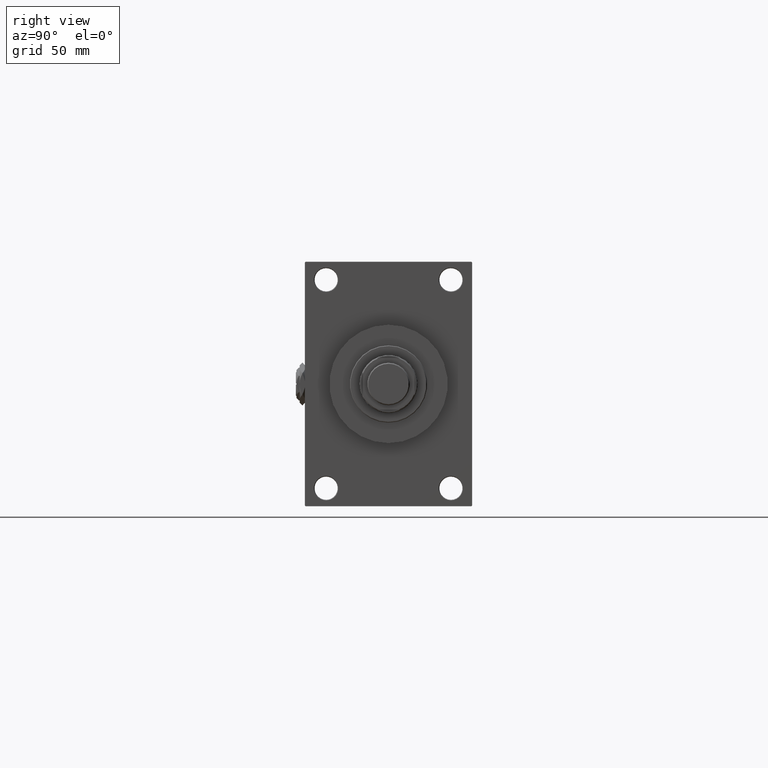
[diagram: clean part render]
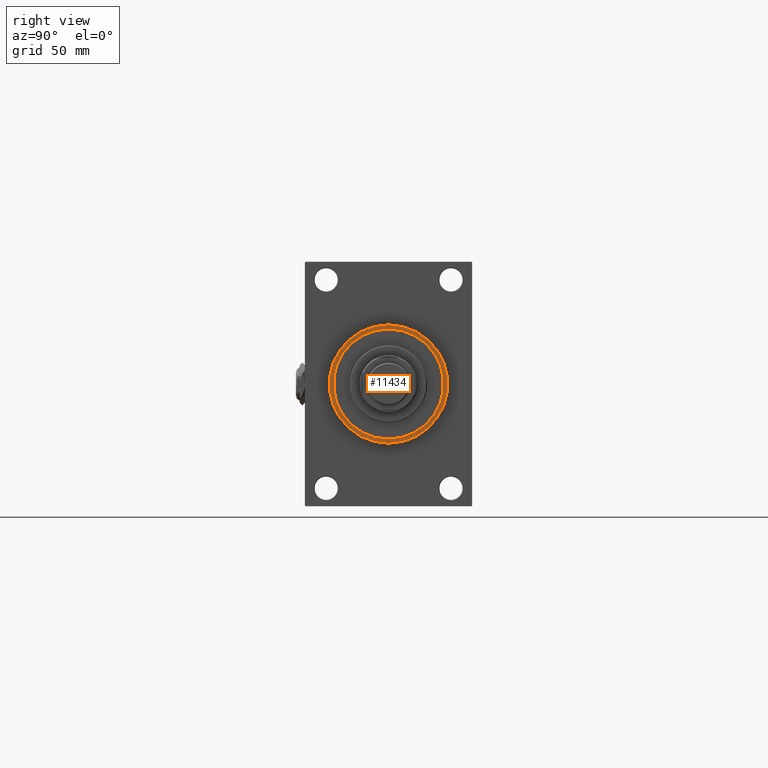
[diagram: same view with one face highlighted and labeled with its STEP entity id]
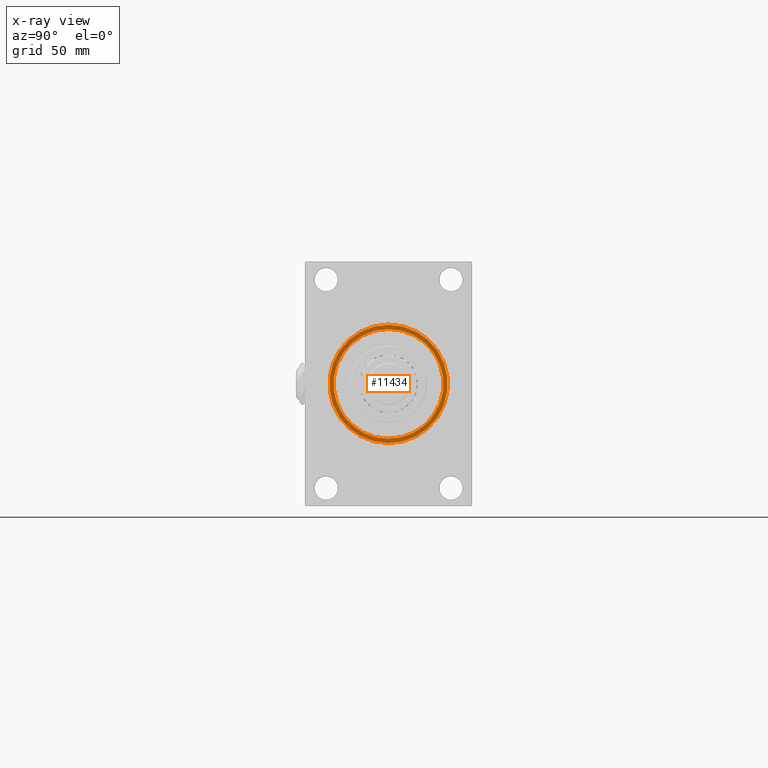
[diagram: x-ray of the same camera — body ghosted, the highlighted face saturated]
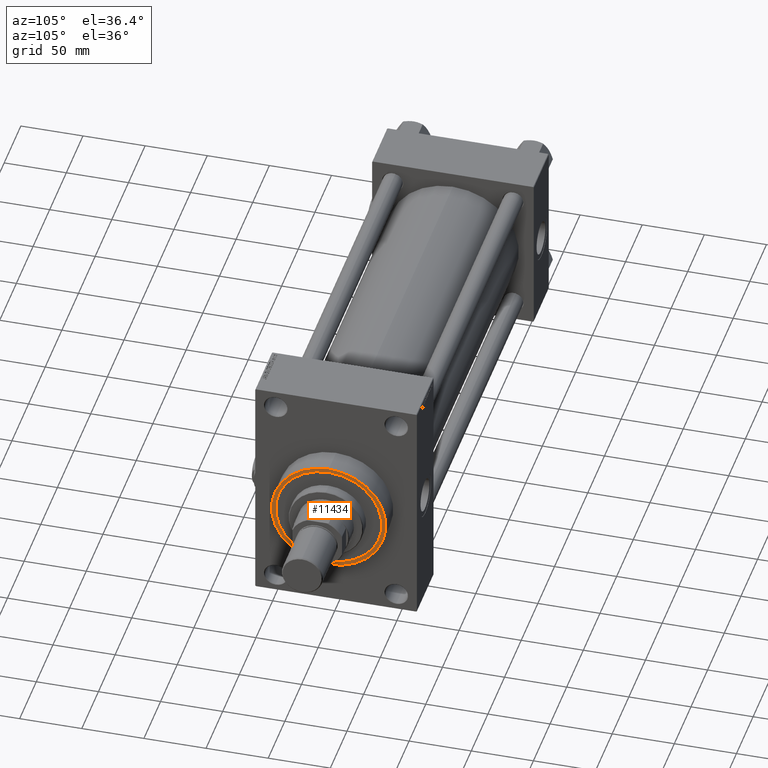
[diagram: same view with one face highlighted and labeled with its STEP entity id]
A machine part, right view. The second image highlights one B-rep face of the part: STEP entity #11434.
The next image is the same camera in x-ray: the body ghosted, the highlighted face saturated — about 0% of this face is hidden behind the body in this view.
A second angle (auxiliary view) of the same face is appended — the face is thin or edge-on in the first view.
In plain terms, the highlighted planar face has unit normal (1, 0, 0).
Its self-contained STEP definition (entity closure, byte-faithful):
#3712 = EDGE_CURVE ( 'NONE', #6800, #8516, #29115, .T. ) ;
#3754 = AXIS2_PLACEMENT_3D ( 'NONE', #37847, #26420, #7361 ) ;
#4558 = EDGE_CURVE ( 'NONE', #25349, #18174, #8064, .T. ) ;
#6800 = VERTEX_POINT ( 'NONE', #7853 ) ;
#7361 = DIRECTION ( 'NONE',  ( 0.000000000000000000, 0.000000000000000000, -1.000000000000000000 ) ) ;
#7853 = CARTESIAN_POINT ( 'NONE',  ( 418.0000000000000000, 5.235365066354935472E-15, 42.75000000000000000 ) ) ;
#8064 = CIRCLE ( 'NONE', #33206, 46.00000000000000000 ) ;
#8516 = VERTEX_POINT ( 'NONE', #28939 ) ;
#8883 = DIRECTION ( 'NONE',  ( 0.000000000000000000, 0.000000000000000000, -1.000000000000000000 ) ) ;
#9206 = ORIENTED_EDGE ( 'NONE', *, *, #18738, .F. ) ;
#9410 = CIRCLE ( 'NONE', #3754, 46.00000000000000000 ) ;
#9655 = CARTESIAN_POINT ( 'NONE',  ( 418.0000000000000000, 0.000000000000000000, 46.00000000000000000 ) ) ;
#11434 = ADVANCED_FACE ( 'NONE', ( #35818, #39130 ), #31995, .T. ) ;
#15903 = DIRECTION ( 'NONE',  ( 1.000000000000000000, 0.000000000000000000, 0.000000000000000000 ) ) ;
#16504 = CARTESIAN_POINT ( 'NONE',  ( 418.0000000000000000, 0.000000000000000000, 0.000000000000000000 ) ) ;
#16756 = CARTESIAN_POINT ( 'NONE',  ( 418.0000000000000000, 0.000000000000000000, 0.000000000000000000 ) ) ;
#17764 = AXIS2_PLACEMENT_3D ( 'NONE', #16504, #20559, #8883 ) ;
#18174 = VERTEX_POINT ( 'NONE', #9655 ) ;
#18738 = EDGE_CURVE ( 'NONE', #8516, #6800, #26712, .T. ) ;
#18762 = CARTESIAN_POINT ( 'NONE',  ( 418.0000000000000000, 5.633375276077824704E-15, -46.00000000000000000 ) ) ;
#19421 = ORIENTED_EDGE ( 'NONE', *, *, #3712, .F. ) ;
#20559 = DIRECTION ( 'NONE',  ( 1.000000000000000000, 0.000000000000000000, 0.000000000000000000 ) ) ;
#23773 = ORIENTED_EDGE ( 'NONE', *, *, #4558, .T. ) ;
#25349 = VERTEX_POINT ( 'NONE', #18762 ) ;
#25556 = CARTESIAN_POINT ( 'NONE',  ( 418.0000000000000000, 0.000000000000000000, 0.000000000000000000 ) ) ;
#26420 = DIRECTION ( 'NONE',  ( 1.000000000000000000, 0.000000000000000000, 0.000000000000000000 ) ) ;
#26712 = CIRCLE ( 'NONE', #47750, 42.75000000000000000 ) ;
#28939 = CARTESIAN_POINT ( 'NONE',  ( 418.0000000000000000, 0.000000000000000000, -42.75000000000000000 ) ) ;
#29115 = CIRCLE ( 'NONE', #17764, 42.75000000000000000 ) ;
#30483 = AXIS2_PLACEMENT_3D ( 'NONE', #16756, #32763, #33271 ) ;
#31995 = PLANE ( 'NONE',  #30483 ) ;
#32763 = DIRECTION ( 'NONE',  ( 1.000000000000000000, 0.000000000000000000, 0.000000000000000000 ) ) ;
#33206 = AXIS2_PLACEMENT_3D ( 'NONE', #25556, #48906, #41297 ) ;
#33271 = DIRECTION ( 'NONE',  ( 0.000000000000000000, 0.000000000000000000, -1.000000000000000000 ) ) ;
#35818 = FACE_BOUND ( 'NONE', #42433, .T. ) ;
#37847 = CARTESIAN_POINT ( 'NONE',  ( 418.0000000000000000, 0.000000000000000000, 0.000000000000000000 ) ) ;
#39130 = FACE_OUTER_BOUND ( 'NONE', #46411, .T. ) ;
#41297 = DIRECTION ( 'NONE',  ( 0.000000000000000000, 0.000000000000000000, -1.000000000000000000 ) ) ;
#42433 = EDGE_LOOP ( 'NONE', ( #9206, #19421 ) ) ;
#43310 = DIRECTION ( 'NONE',  ( 0.000000000000000000, 0.000000000000000000, -1.000000000000000000 ) ) ;
#44051 = CARTESIAN_POINT ( 'NONE',  ( 418.0000000000000000, 0.000000000000000000, 0.000000000000000000 ) ) ;
#44264 = EDGE_CURVE ( 'NONE', #18174, #25349, #9410, .T. ) ;
#46411 = EDGE_LOOP ( 'NONE', ( #46571, #23773 ) ) ;
#46571 = ORIENTED_EDGE ( 'NONE', *, *, #44264, .T. ) ;
#47750 = AXIS2_PLACEMENT_3D ( 'NONE', #44051, #15903, #43310 ) ;
#48906 = DIRECTION ( 'NONE',  ( 1.000000000000000000, 0.000000000000000000, 0.000000000000000000 ) ) ;